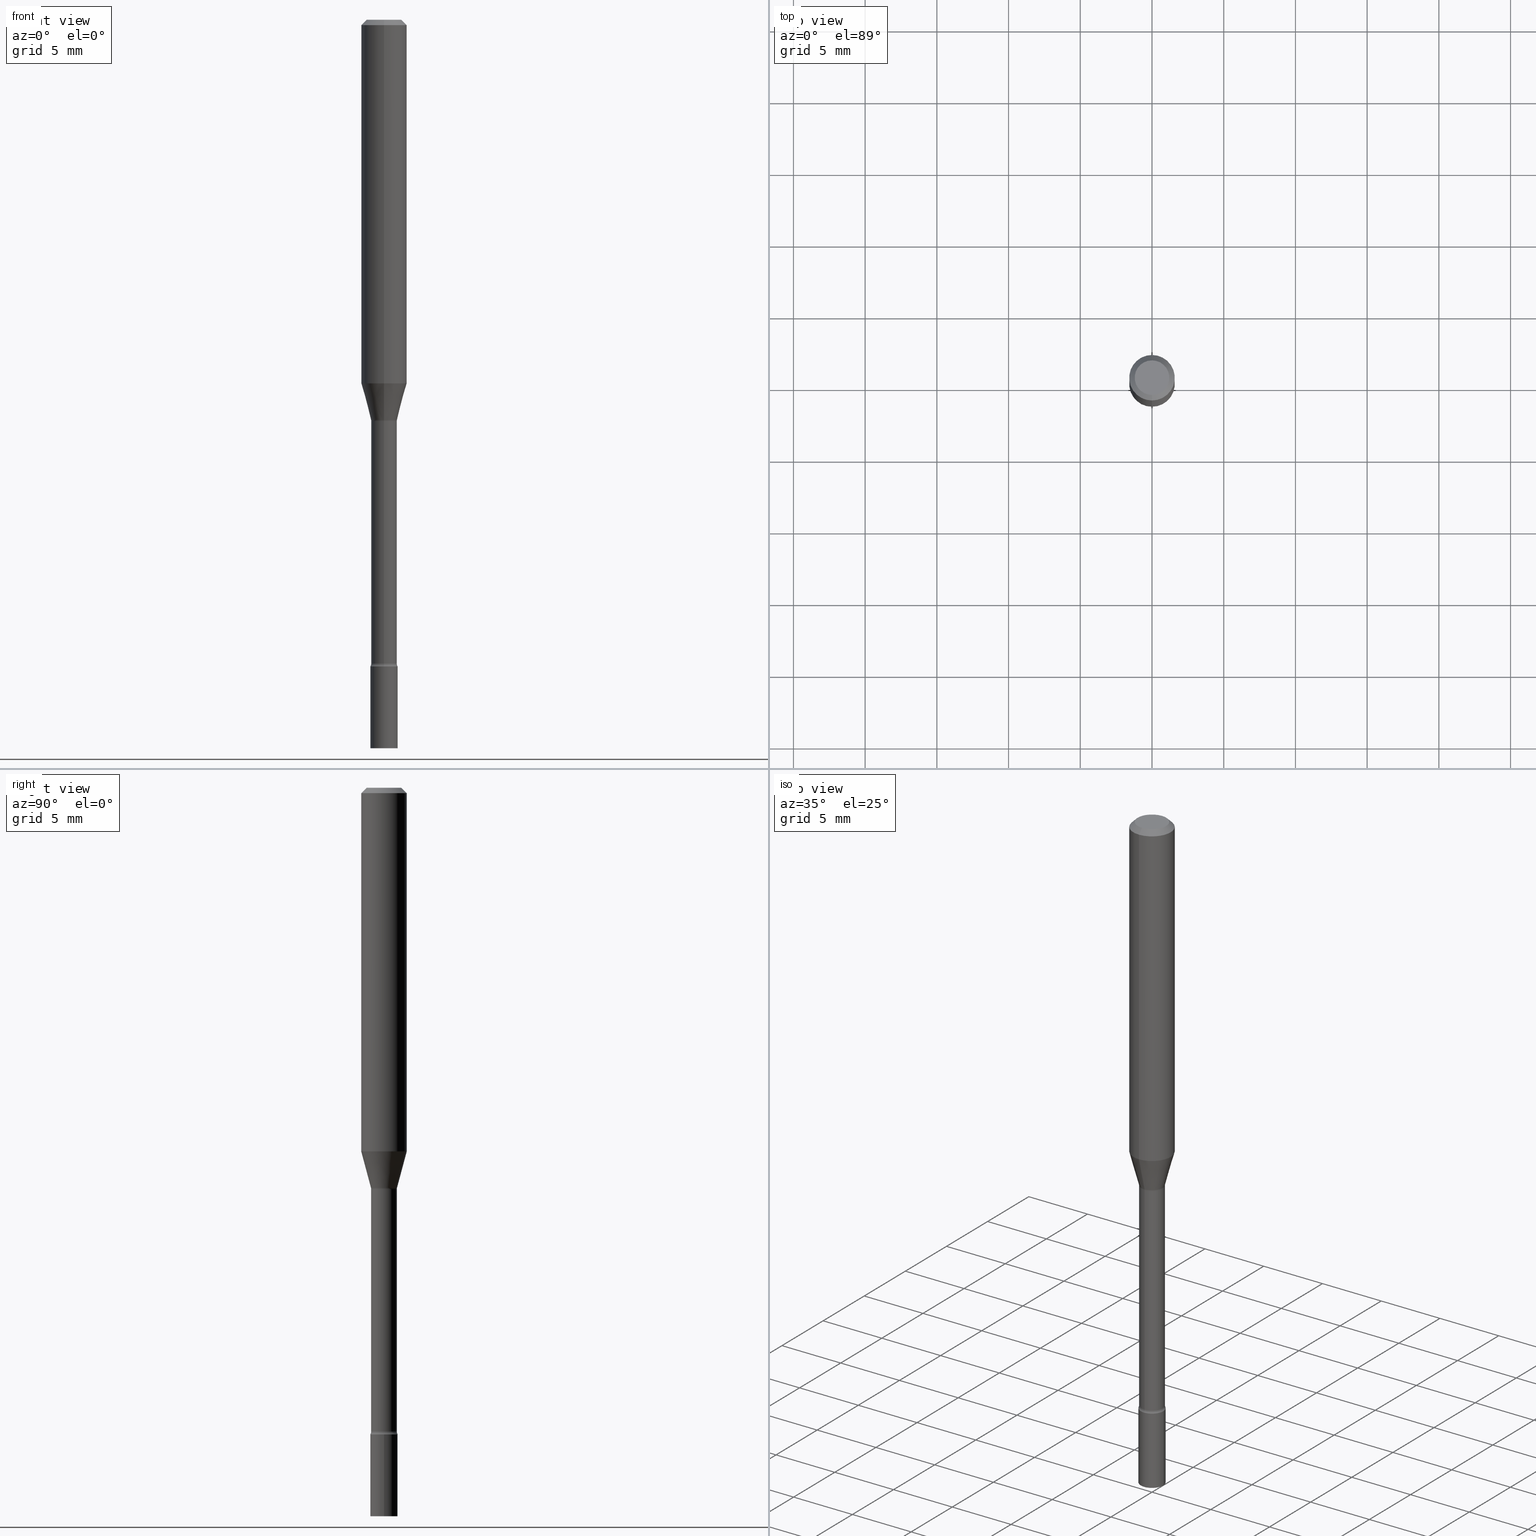
[diagram: canonical four-view strip — front | top / right | iso, engineering-drawing reading convention]
A machine part, canonical four-view strip (front | top / right | iso — engineering-drawing reading convention). The complete STEP part file that produces these views, byte-faithful:
ISO-10303-21;
HEADER;
FILE_DESCRIPTION (( 'STEP AP203' ),
    '1' );
FILE_NAME ('04310.STEP',
    '2024-03-08T23:03:30',
    ( '' ),
    ( '' ),
    'SwSTEP 2.0',
    'SolidWorks 2023',
    '' );
FILE_SCHEMA (( 'CONFIG_CONTROL_DESIGN' ));
ENDSEC;

DATA;
#1 = ORIENTED_EDGE ( 'NONE', *, *, #247, .T. ) ;
#2 = CARTESIAN_POINT ( 'NONE',  ( 3.490935988483243741E-16, 0.03576111260566013778, -1.098092501787273356 ) ) ;
#3 = ORIENTED_EDGE ( 'NONE', *, *, #247, .F. ) ;
#4 = EDGE_CURVE ( 'NONE', #379, #402, #342, .T. ) ;
#5 = AXIS2_PLACEMENT_3D ( 'NONE', #335, #63, #227 ) ;
#6 = VECTOR ( 'NONE', #322, 39.37007874015748143 ) ;
#7 = VERTEX_POINT ( 'NONE', #183 ) ;
#8 = LINE ( 'NONE', #447, #256 ) ;
#9 = PLANE ( 'NONE',  #110 ) ;
#10 = DIRECTION ( 'NONE',  ( 1.000000000000000000, -6.982962677686268288E-15, 0.000000000000000000 ) ) ;
#11 = ORIENTED_EDGE ( 'NONE', *, *, #150, .T. ) ;
#12 = DIRECTION ( 'NONE',  ( 1.000000000000000000, -7.105427357601001070E-15, 4.926314149101816203E-29 ) ) ;
#13 = AXIS2_PLACEMENT_3D ( 'NONE', #434, #151, #442 ) ;
#14 = ORIENTED_EDGE ( 'NONE', *, *, #178, .T. ) ;
#15 = FACE_OUTER_BOUND ( 'NONE', #424, .T. ) ;
#16 = VERTEX_POINT ( 'NONE', #465 ) ;
#17 = APPROVAL_DATE_TIME ( #58, #435 ) ;
#18 = ORIENTED_EDGE ( 'NONE', *, *, #469, .F. ) ;
#19 = MECHANICAL_CONTEXT ( 'NONE', #263, 'mechanical' ) ;
#20 = CLOSED_SHELL ( 'NONE', ( #163, #168, #362, #503 ) ) ;
#21 = DIRECTION ( 'NONE',  ( -2.445546321764708525E-29, 3.491370332121285738E-15, 1.000000000000000000 ) ) ;
#22 = AXIS2_PLACEMENT_3D ( 'NONE', #367, #373, #341 ) ;
#23 = ORIENTED_EDGE ( 'NONE', *, *, #160, .T. ) ;
#24 = DIRECTION ( 'NONE',  ( -2.445546321764708525E-29, 3.491370332121285738E-15, 1.000000000000000000 ) ) ;
#25 = CARTESIAN_POINT ( 'NONE',  ( 4.340844721132357576E-29, -6.197182339515282668E-15, -1.775000000000000133 ) ) ;
#26 =( LENGTH_UNIT ( ) NAMED_UNIT ( * ) SI_UNIT ( $, .METRE. ) );
#27 = DIRECTION ( 'NONE',  ( -6.982962677686265922E-15, -1.000000000000000000, 0.000000000000000000 ) ) ;
#28 = EDGE_CURVE ( 'NONE', #500, #60, #216, .T. ) ;
#29 = COORDINATED_UNIVERSAL_TIME_OFFSET ( 5, 0, .BEHIND. ) ;
#30 = DIRECTION ( 'NONE',  ( -6.982962677686265922E-15, -1.000000000000000000, 3.483106191921935554E-15 ) ) ;
#31 = AXIS2_PLACEMENT_3D ( 'NONE', #53, #171, #366 ) ;
#32 = VERTEX_POINT ( 'NONE', #272 ) ;
#33 = ADVANCED_FACE ( 'NONE', ( #428 ), #102, .T. ) ;
#34 = PLANE ( 'NONE',  #155 ) ;
#35 = ORIENTED_EDGE ( 'NONE', *, *, #234, .F. ) ;
#36 = DIRECTION ( 'NONE',  ( 1.000000000000000000, -6.982962677686265922E-15, 4.876176775795935793E-29 ) ) ;
#37 = SHAPE_DEFINITION_REPRESENTATION ( #371, #450 ) ;
#38 = CARTESIAN_POINT ( 'NONE',  ( -2.618611004131915157E-16, -0.03750000000000618811, -1.775000000000000133 ) ) ;
#39 = DESIGN_CONTEXT ( 'detailed design', #44, 'design' ) ;
#40 = AXIS2_PLACEMENT_3D ( 'NONE', #399, #310, #473 ) ;
#41 = CC_DESIGN_SECURITY_CLASSIFICATION ( #124, ( #443 ) ) ;
#42 = PERSON_AND_ORGANIZATION ( #54, #270 ) ;
#43 = CC_DESIGN_PERSON_AND_ORGANIZATION_ASSIGNMENT ( #42, #427, ( #124 ) ) ;
#44 = APPLICATION_CONTEXT ( 'configuration controlled 3d designs of mechanical parts and assemblies' ) ;
#45 = FACE_OUTER_BOUND ( 'NONE', #233, .T. ) ;
#46 = EDGE_LOOP ( 'NONE', ( #511, #444 ) ) ;
#47 = FACE_OUTER_BOUND ( 'NONE', #459, .T. ) ;
#48 = CARTESIAN_POINT ( 'NONE',  ( -0.03749999999999999861, 2.664535259100375598E-16, -1.844600658845589458E-30 ) ) ;
#49 = CARTESIAN_POINT ( 'NONE',  ( -0.03749999999999999861, -6.323717501156401251E-15, -2.000000000000000000 ) ) ;
#50 = CARTESIAN_POINT ( 'NONE',  ( 2.685436078703272105E-29, -3.833847582664925383E-15, -1.098092501787273134 ) ) ;
#51 = ORIENTED_EDGE ( 'NONE', *, *, #510, .T. ) ;
#52 = ORIENTED_EDGE ( 'NONE', *, *, #234, .T. ) ;
#53 = CARTESIAN_POINT ( 'NONE',  ( 2.618611004132783890E-16, 0.03749999999999380218, -1.775000000000000133 ) ) ;
#54 = PERSON ( 'UNSPECIFIED', 'UNSPECIFIED', 'UNSPECIFIED', ('UNSPECIFIED'), ('UNSPECIFIED'), ('UNSPECIFIED') ) ;
#55 = ORIENTED_EDGE ( 'NONE', *, *, #414, .F. ) ;
#56 = FACE_OUTER_BOUND ( 'NONE', #76, .T. ) ;
#57 = AXIS2_PLACEMENT_3D ( 'NONE', #254, #96, #323 ) ;
#58 = DATE_AND_TIME ( #505, #476 ) ;
#59 = FACE_OUTER_BOUND ( 'NONE', #95, .T. ) ;
#60 = VERTEX_POINT ( 'NONE', #307 ) ;
#61 = DIRECTION ( 'NONE',  ( -6.982962677686265922E-15, -1.000000000000000000, 3.483106191921935554E-15 ) ) ;
#62 = CIRCLE ( 'NONE', #419, 0.03749999999999999861 ) ;
#63 = DIRECTION ( 'NONE',  ( -2.445546321764708525E-29, 3.491370332121285738E-15, 1.000000000000000000 ) ) ;
#64 = TOROIDAL_SURFACE ( 'NONE', #390, 0.05024999999999999606, 0.01499999999999999077 ) ;
#65 = ADVANCED_FACE ( 'NONE', ( #265 ), #356, .T. ) ;
#66 = DIRECTION ( 'NONE',  ( -6.982962677686265922E-15, -1.000000000000000000, 3.491370332121285738E-15 ) ) ;
#67 = ORIENTED_EDGE ( 'NONE', *, *, #510, .F. ) ;
#68 = APPROVAL_STATUS ( 'not_yet_approved' ) ;
#69 = DIRECTION ( 'NONE',  ( -2.445546321764708525E-29, 3.491370332121285738E-15, 1.000000000000000000 ) ) ;
#70 = EDGE_CURVE ( 'NONE', #379, #245, #275, .T. ) ;
#71 = DATE_AND_TIME ( #197, #192 ) ;
#72 = DIRECTION ( 'NONE',  ( 2.445546321764708525E-29, -3.491370332121285738E-15, -1.000000000000000000 ) ) ;
#73 = AXIS2_PLACEMENT_3D ( 'NONE', #25, #137, #27 ) ;
#74 = ORIENTED_EDGE ( 'NONE', *, *, #70, .F. ) ;
#75 = ADVANCED_FACE ( 'NONE', ( #144 ), #99, .T. ) ;
#76 = EDGE_LOOP ( 'NONE', ( #11, #78, #3, #93 ) ) ;
#77 = CARTESIAN_POINT ( 'NONE',  ( 2.694844967945245181E-29, -3.847524406305537036E-15, -1.101974787463810834 ) ) ;
#78 = ORIENTED_EDGE ( 'NONE', *, *, #295, .T. ) ;
#79 = CC_DESIGN_PERSON_AND_ORGANIZATION_ASSIGNMENT ( #182, #339, ( #443 ) ) ;
#80 = CARTESIAN_POINT ( 'NONE',  ( 2.694930388159568916E-29, -3.847402079696808984E-15, -1.101974787463810834 ) ) ;
#81 = AXIS2_PLACEMENT_3D ( 'NONE', #107, #113, #277 ) ;
#82 = DIRECTION ( 'NONE',  ( -2.445546321764708525E-29, 3.491370332121285738E-15, 1.000000000000000000 ) ) ;
#83 = CARTESIAN_POINT ( 'NONE',  ( 0.000000000000000000, 0.000000000000000000, 0.000000000000000000 ) ) ;
#84 = ADVANCED_FACE ( 'NONE', ( #59 ), #34, .F. ) ;
#85 = DIRECTION ( 'NONE',  ( -2.445546321764708525E-29, 3.491370332121285738E-15, 1.000000000000000000 ) ) ;
#86 = ORIENTED_EDGE ( 'NONE', *, *, #319, .F. ) ;
#87 = VECTOR ( 'NONE', #506, 39.37007874015748143 ) ;
#88 = CARTESIAN_POINT ( 'NONE',  ( 0.03749999999999999861, -7.244823778099525378E-15, -2.000000000000000000 ) ) ;
#89 = EDGE_CURVE ( 'NONE', #402, #314, #474, .T. ) ;
#90 = EDGE_CURVE ( 'NONE', #363, #496, #62, .T. ) ;
#91 = DIRECTION ( 'NONE',  ( -2.445546321764708245E-29, 3.491370332121285738E-15, 1.000000000000000000 ) ) ;
#92 = APPROVAL ( #472, 'UNSPECIFIED' ) ;
#93 = ORIENTED_EDGE ( 'NONE', *, *, #121, .F. ) ;
#94 = DIRECTION ( 'NONE',  ( 2.445546321764708525E-29, -3.491370332121285738E-15, -1.000000000000000000 ) ) ;
#95 = EDGE_LOOP ( 'NONE', ( #406, #23 ) ) ;
#96 = DIRECTION ( 'NONE',  ( -2.445546321764708525E-29, 3.491370332121285738E-15, 1.000000000000000000 ) ) ;
#97 = AXIS2_PLACEMENT_3D ( 'NONE', #190, #188, #260 ) ;
#98 = EDGE_CURVE ( 'NONE', #210, #32, #267, .T. ) ;
#99 = CYLINDRICAL_SURFACE ( 'NONE', #311, 0.03525000000000003825 ) ;
#100 = CARTESIAN_POINT ( 'NONE',  ( 4.364351673553919652E-16, 0.06249999999999995143, -0.01500000000000024751 ) ) ;
#101 = SECURITY_CLASSIFICATION_LEVEL ( 'unclassified' ) ;
#102 = CYLINDRICAL_SURFACE ( 'NONE', #179, 0.03525000000000003825 ) ;
#103 = CIRCLE ( 'NONE', #401, 0.03525000000000008682 ) ;
#104 = EDGE_CURVE ( 'NONE', #16, #177, #389, .T. ) ;
#105 = CARTESIAN_POINT ( 'NONE',  ( 2.685436078703272105E-29, -3.833847582664925383E-15, -1.098092501787273134 ) ) ;
#106 = FACE_OUTER_BOUND ( 'NONE', #481, .T. ) ;
#107 = CARTESIAN_POINT ( 'NONE',  ( 4.890937612370273194E-29, -6.982962677686291165E-15, -2.000000000000000000 ) ) ;
#108 = EDGE_CURVE ( 'NONE', #281, #7, #448, .T. ) ;
#109 = AXIS2_PLACEMENT_3D ( 'NONE', #105, #69, #229 ) ;
#110 = AXIS2_PLACEMENT_3D ( 'NONE', #377, #417, #269 ) ;
#111 = ORIENTED_EDGE ( 'NONE', *, *, #262, .T. ) ;
#112 = DIRECTION ( 'NONE',  ( -6.982962677686266711E-15, -1.000000000000000000, 3.491370332121286133E-15 ) ) ;
#113 = DIRECTION ( 'NONE',  ( -2.445468806185136597E-29, 3.491481338843145583E-15, 1.000000000000000000 ) ) ;
#114 = DIRECTION ( 'NONE',  ( -2.445546321764708525E-29, 3.491370332121285738E-15, 1.000000000000000000 ) ) ;
#115 = AXIS2_PLACEMENT_3D ( 'NONE', #273, #418, #186 ) ;
#116 = VECTOR ( 'NONE', #91, 39.37007874015748143 ) ;
#117 = CC_DESIGN_APPROVAL ( #435, ( #457 ) ) ;
#118 = DIRECTION ( 'NONE',  ( -6.982962677686266711E-15, -1.000000000000000000, 0.000000000000000000 ) ) ;
#119 = CARTESIAN_POINT ( 'NONE',  ( 3.840629472727447874E-16, 0.04749999999999999362, -1.947592745229184119E-16 ) ) ;
#120 = LINE ( 'NONE', #169, #206 ) ;
#121 = EDGE_CURVE ( 'NONE', #32, #170, #461, .T. ) ;
#122 = ADVANCED_FACE ( 'NONE', ( #149 ), #358, .F. ) ;
#123 = CIRCLE ( 'NONE', #217, 0.03524999999999999661 ) ;
#124 = SECURITY_CLASSIFICATION ( '', '', #101 ) ;
#125 = CARTESIAN_POINT ( 'NONE',  ( 2.504663143554355873E-16, 0.03525000000000003825, -1.230708042072754750E-16 ) ) ;
#126 = CC_DESIGN_PERSON_AND_ORGANIZATION_ASSIGNMENT ( #139, #464, ( #443 ) ) ;
#127 = ORIENTED_EDGE ( 'NONE', *, *, #410, .T. ) ;
#128 = EDGE_LOOP ( 'NONE', ( #489, #416, #212, #55 ) ) ;
#129 = PLANE ( 'NONE',  #31 ) ;
#130 = ADVANCED_FACE ( 'NONE', ( #106 ), #224, .T. ) ;
#131 = DIRECTION ( 'NONE',  ( -2.445546321764708525E-29, 3.491370332121285738E-15, 1.000000000000000000 ) ) ;
#132 = ORIENTED_EDGE ( 'NONE', *, *, #98, .F. ) ;
#133 = TOROIDAL_SURFACE ( 'NONE', #13, 0.05025000000000007933, 0.01499999999999999077 ) ;
#134 = COORDINATED_UNIVERSAL_TIME_OFFSET ( 5, 0, .BEHIND. ) ;
#135 = ORIENTED_EDGE ( 'NONE', *, *, #519, .T. ) ;
#136 = ORIENTED_EDGE ( 'NONE', *, *, #178, .F. ) ;
#137 = DIRECTION ( 'NONE',  ( -2.445546321764708525E-29, 3.491370332121285738E-15, 1.000000000000000000 ) ) ;
#138 = ORIENTED_EDGE ( 'NONE', *, *, #28, .F. ) ;
#139 = PERSON_AND_ORGANIZATION ( #54, #270 ) ;
#140 = DIRECTION ( 'NONE',  ( -6.982962677686266711E-15, -1.000000000000000000, 3.491370332121286133E-15 ) ) ;
#141 = ORIENTED_EDGE ( 'NONE', *, *, #410, .F. ) ;
#142 = CC_DESIGN_PERSON_AND_ORGANIZATION_ASSIGNMENT ( #264, #143, ( #298 ) ) ;
#143 = PERSON_AND_ORGANIZATION_ROLE ( 'design_owner' ) ;
#144 = FACE_OUTER_BOUND ( 'NONE', #385, .T. ) ;
#145 = CIRCLE ( 'NONE', #40, 0.06250000000000000000 ) ;
#146 = AXIS2_PLACEMENT_3D ( 'NONE', #446, #85, #249 ) ;
#147 = VERTEX_POINT ( 'NONE', #468 ) ;
#148 = DATE_TIME_ROLE ( 'creation_date' ) ;
#149 = FACE_OUTER_BOUND ( 'NONE', #368, .T. ) ;
#150 = EDGE_CURVE ( 'NONE', #32, #210, #327, .T. ) ;
#151 = DIRECTION ( 'NONE',  ( -2.445546321764708525E-29, 3.491370332121285738E-15, 1.000000000000000000 ) ) ;
#152 = ORIENTED_EDGE ( 'NONE', *, *, #319, .T. ) ;
#153 = COORDINATED_UNIVERSAL_TIME_OFFSET ( 5, 0, .BEHIND. ) ;
#154 = LINE ( 'NONE', #318, #349 ) ;
#155 = AXIS2_PLACEMENT_3D ( 'NONE', #225, #384, #504 ) ;
#156 = AXIS2_PLACEMENT_3D ( 'NONE', #292, #495, #287 ) ;
#157 = LOCAL_TIME ( 18, 3, 30.00000000000000000, #243 ) ;
#158 = DATE_AND_TIME ( #387, #157 ) ;
#159 = DIRECTION ( 'NONE',  ( 7.105427357600997914E-15, 1.000000000000000000, 0.000000000000000000 ) ) ;
#160 = EDGE_CURVE ( 'NONE', #245, #379, #411, .T. ) ;
#161 = CARTESIAN_POINT ( 'NONE',  ( 7.072320344129838963E-46, -1.009675801639892635E-31, -2.891918374715734821E-17 ) ) ;
#162 = ORIENTED_EDGE ( 'NONE', *, *, #316, .F. ) ;
#163 = ADVANCED_FACE ( 'NONE', ( #279 ), #436, .T. ) ;
#164 = FACE_OUTER_BOUND ( 'NONE', #46, .T. ) ;
#165 = AXIS2_PLACEMENT_3D ( 'NONE', #331, #131, #453 ) ;
#166 = CIRCLE ( 'NONE', #475, 0.01499999999999999424 ) ;
#167 = DIRECTION ( 'NONE',  ( 1.000000000000000000, -6.982962677686266711E-15, 4.876176775795935793E-29 ) ) ;
#168 = ADVANCED_FACE ( 'NONE', ( #164 ), #395, .T. ) ;
#169 = CARTESIAN_POINT ( 'NONE',  ( -2.461494343884411737E-16, -0.03525000000000003825, 1.230708042072754750E-16 ) ) ;
#170 = VERTEX_POINT ( 'NONE', #479 ) ;
#171 = DIRECTION ( 'NONE',  ( -2.445546321764708245E-29, 3.491370332121285738E-15, 1.000000000000000000 ) ) ;
#172 = AXIS2_PLACEMENT_3D ( 'NONE', #246, #237, #36 ) ;
#173 = ORIENTED_EDGE ( 'NONE', *, *, #429, .T. ) ;
#174 = DIRECTION ( 'NONE',  ( 7.105427357600997914E-15, 1.000000000000000000, 0.000000000000000000 ) ) ;
#175 = ADVANCED_FACE ( 'NONE', ( #47 ), #133, .F. ) ;
#176 = CYLINDRICAL_SURFACE ( 'NONE', #165, 0.06250000000000000000 ) ;
#177 = VERTEX_POINT ( 'NONE', #320 ) ;
#178 = EDGE_CURVE ( 'NONE', #177, #16, #103, .T. ) ;
#179 = AXIS2_PLACEMENT_3D ( 'NONE', #340, #415, #140 ) ;
#180 = EDGE_LOOP ( 'NONE', ( #18, #376, #111, #236 ) ) ;
#181 = VECTOR ( 'NONE', #286, 39.37007874015748143 ) ;
#182 = PERSON_AND_ORGANIZATION ( #54, #270 ) ;
#183 = CARTESIAN_POINT ( 'NONE',  ( 2.664535259100808486E-16, 0.03749999999999379524, -1.775000000000000133 ) ) ;
#184 = ORIENTED_EDGE ( 'NONE', *, *, #202, .F. ) ;
#185 = CARTESIAN_POINT ( 'NONE',  ( 3.668319482647070110E-31, -5.237055498181939355E-17, -0.01500000000000003067 ) ) ;
#186 = DIRECTION ( 'NONE',  ( 1.000000000000000000, -6.982962677686268288E-15, 0.000000000000000000 ) ) ;
#187 = CC_DESIGN_DATE_AND_TIME_ASSIGNMENT ( #158, #354, ( #124 ) ) ;
#188 = DIRECTION ( 'NONE',  ( -2.445546321764708525E-29, 3.491370332121285738E-15, 1.000000000000000000 ) ) ;
#189 = COORDINATED_UNIVERSAL_TIME_OFFSET ( 5, 0, .BEHIND. ) ;
#190 = CARTESIAN_POINT ( 'NONE',  ( 4.321520649170351713E-29, -6.169594437808623412E-15, -1.767098259685360606 ) ) ;
#191 = AXIS2_PLACEMENT_3D ( 'NONE', #83, #244, #285 ) ;
#192 = LOCAL_TIME ( 18, 3, 30.00000000000000000, #153 ) ;
#193 = ORIENTED_EDGE ( 'NONE', *, *, #98, .T. ) ;
#194 = DIRECTION ( 'NONE',  ( -6.982962677686265922E-15, -1.000000000000000000, 3.491370332121285738E-15 ) ) ;
#195 = DIMENSIONAL_EXPONENTS ( 1.000000000000000000, 0.000000000000000000, 0.000000000000000000, 0.000000000000000000, 0.000000000000000000, 0.000000000000000000, 0.000000000000000000 ) ;
#196 = ORIENTED_EDGE ( 'NONE', *, *, #332, .T. ) ;
#197 = CALENDAR_DATE ( 2024, 8, 3 ) ;
#198 = DIRECTION ( 'NONE',  ( 1.000000000000000000, -7.105427357601001070E-15, 4.926314149101816203E-29 ) ) ;
#199 = DIRECTION ( 'NONE',  ( -6.982962677686265922E-15, -1.000000000000000000, 3.491370332121285738E-15 ) ) ;
#200 = AXIS2_PLACEMENT_3D ( 'NONE', #493, #449, #218 ) ;
#201 = CARTESIAN_POINT ( 'NONE',  ( -2.461494343884138594E-16, -0.03525000000000384076, -1.101974787463810834 ) ) ;
#202 = EDGE_CURVE ( 'NONE', #210, #147, #283, .T. ) ;
#203 = CARTESIAN_POINT ( 'NONE',  ( 3.570477247194771860E-16, 0.05024999999999614497, -1.101974787463811056 ) ) ;
#204 = CARTESIAN_POINT ( 'NONE',  ( 3.570477247194940479E-16, 0.05024999999999391065, -1.767098259685361050 ) ) ;
#205 = VECTOR ( 'NONE', #296, 39.37007874015748143 ) ;
#206 = VECTOR ( 'NONE', #487, 39.37007874015748143 ) ;
#207 = LOCAL_TIME ( 18, 3, 30.00000000000000000, #134 ) ;
#208 = ADVANCED_FACE ( 'NONE', ( #520 ), #347, .T. ) ;
#209 = CARTESIAN_POINT ( 'NONE',  ( 0.03749999999999999861, -6.459240476859818795E-15, -1.775000000000000133 ) ) ;
#210 = VERTEX_POINT ( 'NONE', #2 ) ;
#211 = DIRECTION ( 'NONE',  ( -2.445546321764708525E-29, 3.491370332121285738E-15, 1.000000000000000000 ) ) ;
#212 = ORIENTED_EDGE ( 'NONE', *, *, #344, .T. ) ;
#213 = ORIENTED_EDGE ( 'NONE', *, *, #108, .T. ) ;
#214 = LINE ( 'NONE', #48, #6 ) ;
#215 = ADVANCED_FACE ( 'NONE', ( #45 ), #64, .F. ) ;
#216 = CIRCLE ( 'NONE', #115, 0.03749999999999999861 ) ;
#217 = AXIS2_PLACEMENT_3D ( 'NONE', #80, #114, #282 ) ;
#218 = DIRECTION ( 'NONE',  ( -6.982962677686265133E-15, -1.000000000000000000, 3.874961693140799059E-15 ) ) ;
#219 = ORIENTED_EDGE ( 'NONE', *, *, #160, .F. ) ;
#220 = LENGTH_MEASURE_WITH_UNIT ( LENGTH_MEASURE( 0.02539999999999999897 ), #26 );
#221 = DATE_AND_TIME ( #512, #420 ) ;
#222 = DIRECTION ( 'NONE',  ( 1.000000000000000000, -6.982962677686268288E-15, 0.000000000000000000 ) ) ;
#223 = ORIENTED_EDGE ( 'NONE', *, *, #438, .F. ) ;
#224 = CONICAL_SURFACE ( 'NONE', #517, 0.03576111260566397498, 0.2617993877991499629 ) ;
#225 = CARTESIAN_POINT ( 'NONE',  ( 3.316907271900976096E-16, 0.04749999999999999362, -1.802996826493397501E-16 ) ) ;
#226 = CARTESIAN_POINT ( 'NONE',  ( -4.287811248607203282E-16, -0.06250000000000005551, -0.01499999999999981209 ) ) ;
#227 = DIRECTION ( 'NONE',  ( -6.982962677686266711E-15, -1.000000000000000000, 3.491370332121286133E-15 ) ) ;
#228 = PERSON_AND_ORGANIZATION ( #54, #270 ) ;
#229 = DIRECTION ( 'NONE',  ( -6.982962677686265133E-15, -1.000000000000000000, 3.819579138641765120E-15 ) ) ;
#230 = CONICAL_SURFACE ( 'NONE', #268, 0.03576111260566397498, 0.2617993877991499629 ) ;
#231 = CARTESIAN_POINT ( 'NONE',  ( 4.321383671524591751E-29, -6.169790597593636121E-15, -1.767098259685360606 ) ) ;
#232 = ORIENTED_EDGE ( 'NONE', *, *, #104, .T. ) ;
#233 = EDGE_LOOP ( 'NONE', ( #184, #274, #52, #127 ) ) ;
#234 = EDGE_CURVE ( 'NONE', #32, #257, #372, .T. ) ;
#235 = LINE ( 'NONE', #386, #313 ) ;
#236 = ORIENTED_EDGE ( 'NONE', *, *, #89, .F. ) ;
#237 = DIRECTION ( 'NONE',  ( -2.438088387897960049E-29, 3.491481338843145188E-15, 1.000000000000000000 ) ) ;
#238 = UNCERTAINTY_MEASURE_WITH_UNIT (LENGTH_MEASURE( 1.000000000000000082E-05 ), #497, 'distance_accuracy_value', 'NONE');
#239 = DIRECTION ( 'NONE',  ( -2.445546321764708525E-29, 3.491370332121285738E-15, 1.000000000000000000 ) ) ;
#240 = ADVANCED_FACE ( 'NONE', ( #478 ), #304, .F. ) ;
#241 = AXIS2_PLACEMENT_3D ( 'NONE', #445, #317, #355 ) ;
#242 = EDGE_LOOP ( 'NONE', ( #397, #423 ) ) ;
#243 = COORDINATED_UNIVERSAL_TIME_OFFSET ( 5, 0, .BEHIND. ) ;
#244 = DIRECTION ( 'NONE',  ( -2.445468806185136597E-29, 3.491481338843145583E-15, 1.000000000000000000 ) ) ;
#245 = VERTEX_POINT ( 'NONE', #353 ) ;
#246 = CARTESIAN_POINT ( 'NONE',  ( 4.340707130978617347E-29, -6.197379376446583794E-15, -1.775000000000000133 ) ) ;
#247 = EDGE_CURVE ( 'NONE', #170, #333, #145, .T. ) ;
#248 = ORIENTED_EDGE ( 'NONE', *, *, #295, .F. ) ;
#249 = DIRECTION ( 'NONE',  ( -6.982962677686265922E-15, -1.000000000000000000, 4.370956789862821150E-15 ) ) ;
#250 = CC_DESIGN_DATE_AND_TIME_ASSIGNMENT ( #221, #148, ( #457 ) ) ;
#251 = AXIS2_PLACEMENT_3D ( 'NONE', #293, #94, #409 ) ;
#252 = DIRECTION ( 'NONE',  ( -6.982962677686265133E-15, -1.000000000000000000, 3.819579138641765120E-15 ) ) ;
#253 = EDGE_CURVE ( 'NONE', #496, #363, #454, .T. ) ;
#254 = CARTESIAN_POINT ( 'NONE',  ( 4.340844721132357576E-29, -6.197182339515282668E-15, -1.775000000000000133 ) ) ;
#255 = CARTESIAN_POINT ( 'NONE',  ( 0.000000000000000000, 0.000000000000000000, 0.000000000000000000 ) ) ;
#256 = VECTOR ( 'NONE', #290, 39.37007874015748143 ) ;
#257 = VERTEX_POINT ( 'NONE', #201 ) ;
#258 = DIRECTION ( 'NONE',  ( -2.445468806185136597E-29, 3.491481338843145583E-15, 1.000000000000000000 ) ) ;
#259 = LINE ( 'NONE', #226, #412 ) ;
#260 = DIRECTION ( 'NONE',  ( -6.982962677686266711E-15, -1.000000000000000000, 0.000000000000000000 ) ) ;
#261 = ORIENTED_EDGE ( 'NONE', *, *, #108, .F. ) ;
#262 = EDGE_CURVE ( 'NONE', #170, #314, #235, .T. ) ;
#263 = APPLICATION_CONTEXT ( 'configuration controlled 3d designs of mechanical parts and assemblies' ) ;
#264 = PERSON_AND_ORGANIZATION ( #54, #270 ) ;
#265 = FACE_OUTER_BOUND ( 'NONE', #291, .T. ) ;
#266 = APPROVAL ( #308, 'UNSPECIFIED' ) ;
#267 = CIRCLE ( 'NONE', #326, 0.03576111260566397498 ) ;
#268 = AXIS2_PLACEMENT_3D ( 'NONE', #50, #211, #252 ) ;
#269 = DIRECTION ( 'NONE',  ( -1.000000000000000000, 6.982962677686265922E-15, -4.876176775795935793E-29 ) ) ;
#270 = ORGANIZATION ( 'UNSPECIFIED', 'UNSPECIFIED', '' ) ;
#271 = PERSON_AND_ORGANIZATION ( #54, #270 ) ;
#272 = CARTESIAN_POINT ( 'NONE',  ( -2.497185146378605472E-16, -0.03576111260566780525, -1.098092501787272912 ) ) ;
#273 = CARTESIAN_POINT ( 'NONE',  ( 4.340707130978617347E-29, -6.197379376446583794E-15, -1.775000000000000133 ) ) ;
#274 = ORIENTED_EDGE ( 'NONE', *, *, #150, .F. ) ;
#275 = CIRCLE ( 'NONE', #5, 0.04749999999999999362 ) ;
#276 = CONICAL_SURFACE ( 'NONE', #251, 0.06250000000000000000, 0.7853981633974483900 ) ;
#277 = DIRECTION ( 'NONE',  ( 1.000000000000000000, -6.982962677686268288E-15, 0.000000000000000000 ) ) ;
#278 = CC_DESIGN_APPROVAL ( #92, ( #124 ) ) ;
#279 = FACE_OUTER_BOUND ( 'NONE', #324, .T. ) ;
#280 = ORIENTED_EDGE ( 'NONE', *, *, #316, .T. ) ;
#281 = VERTEX_POINT ( 'NONE', #38 ) ;
#282 = DIRECTION ( 'NONE',  ( -6.982962677686265133E-15, -1.000000000000000000, 3.874961693140799059E-15 ) ) ;
#283 = CIRCLE ( 'NONE', #466, 0.01499999999999999424 ) ;
#284 = EDGE_LOOP ( 'NONE', ( #328, #232, #152, #162 ) ) ;
#285 = DIRECTION ( 'NONE',  ( 1.000000000000000000, -6.982962677686266711E-15, 4.876176775795935793E-29 ) ) ;
#286 = DIRECTION ( 'NONE',  ( -2.445546321764708245E-29, 3.491370332121285738E-15, 1.000000000000000000 ) ) ;
#287 = DIRECTION ( 'NONE',  ( -6.982962677686262766E-15, -1.000000000000000000, 0.000000000000000000 ) ) ;
#288 = AXIS2_PLACEMENT_3D ( 'NONE', #161, #239, #112 ) ;
#289 = CIRCLE ( 'NONE', #146, 0.06250000000000000000 ) ;
#290 = DIRECTION ( 'NONE',  ( -2.445468806185136877E-29, 3.491481338843145188E-15, 1.000000000000000000 ) ) ;
#291 = EDGE_LOOP ( 'NONE', ( #67, #74, #365, #430 ) ) ;
#292 = CARTESIAN_POINT ( 'NONE',  ( -3.508938745536922406E-16, -0.05025000000000625494, -1.767098259685360384 ) ) ;
#293 = CARTESIAN_POINT ( 'NONE',  ( 3.668319482647070110E-31, -5.237055498181939355E-17, -0.01500000000000003067 ) ) ;
#294 = CALENDAR_DATE ( 2024, 8, 3 ) ;
#295 = EDGE_CURVE ( 'NONE', #210, #333, #154, .T. ) ;
#296 = DIRECTION ( 'NONE',  ( 4.937700262164548042E-15, 0.7071067811865451302, -0.7071067811865499042 ) ) ;
#297 = EDGE_LOOP ( 'NONE', ( #261, #477 ) ) ;
#298 = PRODUCT ( '04310', '04310', '', ( #19 ) ) ;
#299 = APPROVAL_ROLE ( '' ) ;
#300 = CARTESIAN_POINT ( 'NONE',  ( 3.668319482647070110E-31, -5.237055498181939355E-17, -0.01500000000000003067 ) ) ;
#301 = PERSON_AND_ORGANIZATION ( #54, #270 ) ;
#302 = CARTESIAN_POINT ( 'NONE',  ( 2.685436078703272105E-29, -3.833847582664925383E-15, -1.098092501787273134 ) ) ;
#303 = ORIENTED_EDGE ( 'NONE', *, *, #121, .T. ) ;
#304 = TOROIDAL_SURFACE ( 'NONE', #336, 0.05024999999999999606, 0.01499999999999999077 ) ;
#305 = APPLICATION_PROTOCOL_DEFINITION ( 'international standard', 'config_control_design', 1994, #44 ) ;
#306 = AXIS2_PLACEMENT_3D ( 'NONE', #185, #24, #61 ) ;
#307 = CARTESIAN_POINT ( 'NONE',  ( -0.03749999999999999861, -6.323717501156401251E-15, -1.775000000000000133 ) ) ;
#308 = APPROVAL_STATUS ( 'not_yet_approved' ) ;
#309 = DIRECTION ( 'NONE',  ( -6.982962677686265133E-15, -1.000000000000000000, 3.819579138641765120E-15 ) ) ;
#310 = DIRECTION ( 'NONE',  ( -2.445546321764708525E-29, 3.491370332121285738E-15, 1.000000000000000000 ) ) ;
#311 = AXIS2_PLACEMENT_3D ( 'NONE', #370, #346, #378 ) ;
#312 = PERSON_AND_ORGANIZATION ( #54, #270 ) ;
#313 = VECTOR ( 'NONE', #348, 39.37007874015748143 ) ;
#314 = VERTEX_POINT ( 'NONE', #480 ) ;
#315 = DIRECTION ( 'NONE',  ( -6.982962677686262766E-15, -1.000000000000000000, 0.000000000000000000 ) ) ;
#316 = EDGE_CURVE ( 'NONE', #147, #257, #123, .T. ) ;
#317 = DIRECTION ( 'NONE',  ( -2.445546321764708525E-29, 3.491370332121285738E-15, 1.000000000000000000 ) ) ;
#318 = CARTESIAN_POINT ( 'NONE',  ( 2.540979878465616281E-16, 0.03576111260566013778, -1.098092501787273356 ) ) ;
#319 = EDGE_CURVE ( 'NONE', #177, #257, #120, .T. ) ;
#320 = CARTESIAN_POINT ( 'NONE',  ( -2.461494343883982794E-16, -0.03525000000000625550, -1.767098259685360606 ) ) ;
#321 = AXIS2_PLACEMENT_3D ( 'NONE', #405, #258, #10 ) ;
#322 = DIRECTION ( 'NONE',  ( -2.445468806185136877E-29, 3.491481338843145188E-15, 1.000000000000000000 ) ) ;
#323 = DIRECTION ( 'NONE',  ( -6.982962677686265922E-15, -1.000000000000000000, 0.000000000000000000 ) ) ;
#324 = EDGE_LOOP ( 'NONE', ( #455, #173, #138, #437 ) ) ;
#325 = FACE_OUTER_BOUND ( 'NONE', #128, .T. ) ;
#326 = AXIS2_PLACEMENT_3D ( 'NONE', #302, #21, #309 ) ;
#327 = CIRCLE ( 'NONE', #109, 0.03576111260566397498 ) ;
#328 = ORIENTED_EDGE ( 'NONE', *, *, #421, .F. ) ;
#329 = CARTESIAN_POINT ( 'NONE',  ( 4.440892098500871695E-16, 0.06249999999999995837, -0.01500000000000024751 ) ) ;
#330 = ORIENTED_EDGE ( 'NONE', *, *, #202, .T. ) ;
#331 = CARTESIAN_POINT ( 'NONE',  ( 0.000000000000000000, 0.000000000000000000, 0.000000000000000000 ) ) ;
#332 = EDGE_CURVE ( 'NONE', #177, #281, #482, .T. ) ;
#333 = VERTEX_POINT ( 'NONE', #364 ) ;
#334 = APPROVAL_ROLE ( '' ) ;
#335 = CARTESIAN_POINT ( 'NONE',  ( 7.072320344129838963E-46, -1.009675801639892635E-31, -2.891918374715734821E-17 ) ) ;
#336 = AXIS2_PLACEMENT_3D ( 'NONE', #388, #439, #194 ) ;
#337 = ORIENTED_EDGE ( 'NONE', *, *, #104, .F. ) ;
#338 = CC_DESIGN_PERSON_AND_ORGANIZATION_ASSIGNMENT ( #228, #380, ( #457 ) ) ;
#339 = PERSON_AND_ORGANIZATION_ROLE ( 'creator' ) ;
#340 = CARTESIAN_POINT ( 'NONE',  ( 0.000000000000000000, 0.000000000000000000, 0.000000000000000000 ) ) ;
#341 = DIRECTION ( 'NONE',  ( 1.000000000000000000, 0.000000000000000000, 0.000000000000000000 ) ) ;
#342 = LINE ( 'NONE', #100, #205 ) ;
#343 = CARTESIAN_POINT ( 'NONE',  ( 2.685436078703272105E-29, -3.833847582664925383E-15, -1.098092501787273134 ) ) ;
#344 = EDGE_CURVE ( 'NONE', #363, #500, #8, .T. ) ;
#345 = CIRCLE ( 'NONE', #200, 0.03524999999999999661 ) ;
#346 = DIRECTION ( 'NONE',  ( -2.445546321764708525E-29, 3.491370332121285738E-15, 1.000000000000000000 ) ) ;
#347 = CYLINDRICAL_SURFACE ( 'NONE', #241, 0.06250000000000000000 ) ;
#348 = DIRECTION ( 'NONE',  ( -2.445546321764708245E-29, 3.491370332121285738E-15, 1.000000000000000000 ) ) ;
#349 = VECTOR ( 'NONE', #518, 39.37007874015748854 ) ;
#350 = DIRECTION ( 'NONE',  ( -1.000000000000000000, 6.982962677686265922E-15, -4.883557194083112340E-29 ) ) ;
#351 = APPROVAL_PERSON_ORGANIZATION ( #301, #266, #334 ) ;
#352 = APPROVAL_DATE_TIME ( #71, #92 ) ;
#353 = CARTESIAN_POINT ( 'NONE',  ( -3.773273898774340269E-16, -0.04749999999999999362, 1.369209070286037155E-16 ) ) ;
#354 = DATE_TIME_ROLE ( 'classification_date' ) ;
#355 = DIRECTION ( 'NONE',  ( -6.982962677686265922E-15, -1.000000000000000000, 3.491370332121285738E-15 ) ) ;
#356 = CONICAL_SURFACE ( 'NONE', #431, 0.06250000000000000000, 0.7853981633974483900 ) ;
#357 = LINE ( 'NONE', #485, #181 ) ;
#358 = TOROIDAL_SURFACE ( 'NONE', #441, 0.05025000000000007933, 0.01499999999999999077 ) ;
#359 = FACE_OUTER_BOUND ( 'NONE', #242, .T. ) ;
#360 = ORIENTED_EDGE ( 'NONE', *, *, #519, .F. ) ;
#361 = FACE_OUTER_BOUND ( 'NONE', #297, .T. ) ;
#362 = ADVANCED_FACE ( 'NONE', ( #325 ), #452, .T. ) ;
#363 = VERTEX_POINT ( 'NONE', #88 ) ;
#364 = CARTESIAN_POINT ( 'NONE',  ( 4.440892098500869722E-16, 0.06249999999999652361, -0.9983016154937485176 ) ) ;
#365 = ORIENTED_EDGE ( 'NONE', *, *, #4, .T. ) ;
#366 = DIRECTION ( 'NONE',  ( -6.982962677686265922E-15, -1.000000000000000000, 3.491370332121285738E-15 ) ) ;
#367 = CARTESIAN_POINT ( 'NONE',  ( 0.000000000000000000, 0.000000000000000000, 0.000000000000000000 ) ) ;
#368 = EDGE_LOOP ( 'NONE', ( #337, #492, #426, #408 ) ) ;
#369 = DATE_AND_TIME ( #294, #207 ) ;
#370 = CARTESIAN_POINT ( 'NONE',  ( 0.000000000000000000, 0.000000000000000000, 0.000000000000000000 ) ) ;
#371 = PRODUCT_DEFINITION_SHAPE ( 'NONE', 'NONE',  #457 ) ;
#372 = CIRCLE ( 'NONE', #432, 0.01499999999999999424 ) ;
#373 = DIRECTION ( 'NONE',  ( 0.000000000000000000, 0.000000000000000000, 1.000000000000000000 ) ) ;
#374 = DIRECTION ( 'NONE',  ( -2.445468806185136597E-29, 3.491481338843145583E-15, 1.000000000000000000 ) ) ;
#375 = ORIENTED_EDGE ( 'NONE', *, *, #421, .T. ) ;
#376 = ORIENTED_EDGE ( 'NONE', *, *, #484, .T. ) ;
#377 = CARTESIAN_POINT ( 'NONE',  ( 2.618611004132838617E-16, 0.03749999999999301115, -2.000000000000000000 ) ) ;
#378 = DIRECTION ( 'NONE',  ( -6.982962677686266711E-15, -1.000000000000000000, 3.491370332121286133E-15 ) ) ;
#379 = VERTEX_POINT ( 'NONE', #119 ) ;
#380 = PERSON_AND_ORGANIZATION_ROLE ( 'creator' ) ;
#381 = CARTESIAN_POINT ( 'NONE',  ( 3.668319482647070110E-31, -5.237055498181939355E-17, -0.01500000000000003067 ) ) ;
#382 = AXIS2_PLACEMENT_3D ( 'NONE', #255, #407, #167 ) ;
#383 =( GEOMETRIC_REPRESENTATION_CONTEXT ( 3 ) GLOBAL_UNCERTAINTY_ASSIGNED_CONTEXT ( ( #238 ) ) GLOBAL_UNIT_ASSIGNED_CONTEXT ( ( #497, #470, #507 ) ) REPRESENTATION_CONTEXT ( 'NONE', 'WORKASPACE' ) );
#384 = DIRECTION ( 'NONE',  ( 2.445546321764708245E-29, -3.491370332121285738E-15, -1.000000000000000000 ) ) ;
#385 = EDGE_LOOP ( 'NONE', ( #14, #375, #141, #86 ) ) ;
#386 = CARTESIAN_POINT ( 'NONE',  ( -4.364351673553916201E-16, -0.06250000000000000000, 2.182106457575803586E-16 ) ) ;
#387 = CALENDAR_DATE ( 2024, 8, 3 ) ;
#388 = CARTESIAN_POINT ( 'NONE',  ( 2.694844967945245181E-29, -3.847524406305537036E-15, -1.101974787463810834 ) ) ;
#389 = CIRCLE ( 'NONE', #97, 0.03525000000000008682 ) ;
#390 = AXIS2_PLACEMENT_3D ( 'NONE', #77, #514, #199 ) ;
#391 = EDGE_CURVE ( 'NONE', #7, #281, #509, .T. ) ;
#392 = CARTESIAN_POINT ( 'NONE',  ( 4.321520649170351713E-29, -6.169594437808623412E-15, -1.767098259685360606 ) ) ;
#393 = APPROVAL_ROLE ( '' ) ;
#394 = EDGE_LOOP ( 'NONE', ( #219, #51, #135, #398 ) ) ;
#395 = PLANE ( 'NONE',  #172 ) ;
#396 = ADVANCED_FACE ( 'NONE', ( #56 ), #230, .T. ) ;
#397 = ORIENTED_EDGE ( 'NONE', *, *, #90, .F. ) ;
#398 = ORIENTED_EDGE ( 'NONE', *, *, #4, .F. ) ;
#399 = CARTESIAN_POINT ( 'NONE',  ( 2.441392843782502609E-29, -3.485440642843624235E-15, -0.9983016154937482955 ) ) ;
#400 = FACE_OUTER_BOUND ( 'NONE', #394, .T. ) ;
#401 = AXIS2_PLACEMENT_3D ( 'NONE', #392, #82, #118 ) ;
#402 = VERTEX_POINT ( 'NONE', #329 ) ;
#403 = CIRCLE ( 'NONE', #306, 0.06250000000000000000 ) ;
#404 = PRODUCT_RELATED_PRODUCT_CATEGORY ( 'detail', '', ( #298 ) ) ;
#405 = CARTESIAN_POINT ( 'NONE',  ( 4.340707130978617347E-29, -6.197379376446583794E-15, -1.775000000000000133 ) ) ;
#406 = ORIENTED_EDGE ( 'NONE', *, *, #70, .T. ) ;
#407 = DIRECTION ( 'NONE',  ( -2.445468806185136597E-29, 3.491481338843145583E-15, 1.000000000000000000 ) ) ;
#408 = ORIENTED_EDGE ( 'NONE', *, *, #332, .F. ) ;
#409 = DIRECTION ( 'NONE',  ( 6.982962677686265922E-15, 1.000000000000000000, -3.483106191921935554E-15 ) ) ;
#410 = EDGE_CURVE ( 'NONE', #257, #147, #345, .T. ) ;
#411 = CIRCLE ( 'NONE', #288, 0.04749999999999999362 ) ;
#412 = VECTOR ( 'NONE', #456, 39.37007874015748143 ) ;
#413 = ADVANCED_FACE ( 'NONE', ( #361 ), #129, .F. ) ;
#414 = EDGE_CURVE ( 'NONE', #60, #500, #491, .T. ) ;
#415 = DIRECTION ( 'NONE',  ( -2.445546321764708525E-29, 3.491370332121285738E-15, 1.000000000000000000 ) ) ;
#416 = ORIENTED_EDGE ( 'NONE', *, *, #253, .T. ) ;
#417 = DIRECTION ( 'NONE',  ( 2.438088387897960049E-29, -3.491481338843145188E-15, -1.000000000000000000 ) ) ;
#418 = DIRECTION ( 'NONE',  ( -2.445468806185136597E-29, 3.491481338843145583E-15, 1.000000000000000000 ) ) ;
#419 = AXIS2_PLACEMENT_3D ( 'NONE', #513, #374, #222 ) ;
#420 = LOCAL_TIME ( 18, 3, 30.00000000000000000, #189 ) ;
#421 = EDGE_CURVE ( 'NONE', #16, #147, #490, .T. ) ;
#422 = DIRECTION ( 'NONE',  ( -2.445546321764708525E-29, 3.491370332121285738E-15, 1.000000000000000000 ) ) ;
#423 = ORIENTED_EDGE ( 'NONE', *, *, #253, .F. ) ;
#424 = EDGE_LOOP ( 'NONE', ( #1, #451, #360, #467 ) ) ;
#425 = CARTESIAN_POINT ( 'NONE',  ( -2.497185146378605472E-16, -0.03576111260566780525, -1.098092501787272912 ) ) ;
#426 = ORIENTED_EDGE ( 'NONE', *, *, #391, .T. ) ;
#427 = PERSON_AND_ORGANIZATION_ROLE ( 'classification_officer' ) ;
#428 = FACE_OUTER_BOUND ( 'NONE', #284, .T. ) ;
#429 = EDGE_CURVE ( 'NONE', #496, #60, #214, .T. ) ;
#430 = ORIENTED_EDGE ( 'NONE', *, *, #89, .T. ) ;
#431 = AXIS2_PLACEMENT_3D ( 'NONE', #381, #72, #458 ) ;
#432 = AXIS2_PLACEMENT_3D ( 'NONE', #515, #350, #315 ) ;
#433 = CC_DESIGN_APPROVAL ( #266, ( #443 ) ) ;
#434 = CARTESIAN_POINT ( 'NONE',  ( 4.321383671524591751E-29, -6.169790597593636121E-15, -1.767098259685360606 ) ) ;
#435 = APPROVAL ( #68, 'UNSPECIFIED' ) ;
#436 = CYLINDRICAL_SURFACE ( 'NONE', #191, 0.03749999999999999861 ) ;
#437 = ORIENTED_EDGE ( 'NONE', *, *, #344, .F. ) ;
#438 = EDGE_CURVE ( 'NONE', #16, #7, #166, .T. ) ;
#439 = DIRECTION ( 'NONE',  ( -2.445546321764708525E-29, 3.491370332121285738E-15, 1.000000000000000000 ) ) ;
#440 = CLOSED_SHELL ( 'NONE', ( #240, #75, #122, #462, #463, #396, #130, #208, #65, #84, #413, #175, #33, #215 ) ) ;
#441 = AXIS2_PLACEMENT_3D ( 'NONE', #231, #471, #66 ) ;
#442 = DIRECTION ( 'NONE',  ( -6.982962677686265922E-15, -1.000000000000000000, 3.491370332121285738E-15 ) ) ;
#443 = PRODUCT_DEFINITION_FORMATION_WITH_SPECIFIED_SOURCE ( 'ANY', '', #298, .NOT_KNOWN. ) ;
#444 = ORIENTED_EDGE ( 'NONE', *, *, #414, .T. ) ;
#445 = CARTESIAN_POINT ( 'NONE',  ( 0.000000000000000000, 0.000000000000000000, 0.000000000000000000 ) ) ;
#446 = CARTESIAN_POINT ( 'NONE',  ( 2.441392843782502609E-29, -3.485440642843624235E-15, -0.9983016154937482955 ) ) ;
#447 = CARTESIAN_POINT ( 'NONE',  ( 0.03749999999999999861, -2.618611004132350016E-16, 1.828566290923475922E-30 ) ) ;
#448 = CIRCLE ( 'NONE', #73, 0.03749999999999999861 ) ;
#449 = DIRECTION ( 'NONE',  ( -2.445546321764708525E-29, 3.491370332121285738E-15, 1.000000000000000000 ) ) ;
#450 = ADVANCED_BREP_SHAPE_REPRESENTATION ( '04310', ( #502, #488, #22 ), #383 ) ;
#451 = ORIENTED_EDGE ( 'NONE', *, *, #469, .T. ) ;
#452 = CYLINDRICAL_SURFACE ( 'NONE', #382, 0.03749999999999999861 ) ;
#453 = DIRECTION ( 'NONE',  ( -6.982962677686265922E-15, -1.000000000000000000, 3.491370332121285738E-15 ) ) ;
#454 = CIRCLE ( 'NONE', #81, 0.03749999999999999861 ) ;
#455 = ORIENTED_EDGE ( 'NONE', *, *, #90, .T. ) ;
#456 = DIRECTION ( 'NONE',  ( -4.851104656540964275E-15, -0.7071067811865500152, -0.7071067811865450192 ) ) ;
#457 = PRODUCT_DEFINITION ( 'UNKNOWN', '', #443, #39 ) ;
#458 = DIRECTION ( 'NONE',  ( 6.982962677686265922E-15, 1.000000000000000000, -3.483106191921935554E-15 ) ) ;
#459 = EDGE_LOOP ( 'NONE', ( #223, #136, #196, #213 ) ) ;
#460 = APPROVAL_DATE_TIME ( #369, #266 ) ;
#461 = LINE ( 'NONE', #425, #87 ) ;
#462 = ADVANCED_FACE ( 'NONE', ( #400 ), #276, .T. ) ;
#463 = ADVANCED_FACE ( 'NONE', ( #15 ), #176, .T. ) ;
#464 = PERSON_AND_ORGANIZATION_ROLE ( 'design_supplier' ) ;
#465 = CARTESIAN_POINT ( 'NONE',  ( 2.584599201327800595E-16, 0.03524999999999392508, -1.767098259685360606 ) ) ;
#466 = AXIS2_PLACEMENT_3D ( 'NONE', #203, #198, #159 ) ;
#467 = ORIENTED_EDGE ( 'NONE', *, *, #262, .F. ) ;
#468 = CARTESIAN_POINT ( 'NONE',  ( 2.504663143554787774E-16, 0.03524999999999615247, -1.101974787463811056 ) ) ;
#469 = EDGE_CURVE ( 'NONE', #333, #402, #357, .T. ) ;
#470 =( NAMED_UNIT ( * ) PLANE_ANGLE_UNIT ( ) SI_UNIT ( $, .RADIAN. ) );
#471 = DIRECTION ( 'NONE',  ( -2.445546321764708525E-29, 3.491370332121285738E-15, 1.000000000000000000 ) ) ;
#472 = APPROVAL_STATUS ( 'not_yet_approved' ) ;
#473 = DIRECTION ( 'NONE',  ( -6.982962677686265922E-15, -1.000000000000000000, 4.370956789862821150E-15 ) ) ;
#474 = CIRCLE ( 'NONE', #516, 0.06250000000000000000 ) ;
#475 = AXIS2_PLACEMENT_3D ( 'NONE', #204, #12, #174 ) ;
#476 = LOCAL_TIME ( 18, 3, 30.00000000000000000, #29 ) ;
#477 = ORIENTED_EDGE ( 'NONE', *, *, #391, .F. ) ;
#478 = FACE_OUTER_BOUND ( 'NONE', #486, .T. ) ;
#479 = CARTESIAN_POINT ( 'NONE',  ( -4.364351673553671654E-16, -0.06250000000000346945, -0.9983016154937480735 ) ) ;
#480 = CARTESIAN_POINT ( 'NONE',  ( -4.364351673553912750E-16, -0.06250000000000005551, -0.01499999999999981209 ) ) ;
#481 = EDGE_LOOP ( 'NONE', ( #248, #193, #303, #494 ) ) ;
#482 = CIRCLE ( 'NONE', #156, 0.01499999999999999424 ) ;
#483 = APPROVAL_PERSON_ORGANIZATION ( #271, #435, #299 ) ;
#484 = EDGE_CURVE ( 'NONE', #333, #170, #289, .T. ) ;
#485 = CARTESIAN_POINT ( 'NONE',  ( 4.440892098500625669E-16, 0.06250000000000000000, -2.182106457575803586E-16 ) ) ;
#486 = EDGE_LOOP ( 'NONE', ( #132, #330, #280, #35 ) ) ;
#487 = DIRECTION ( 'NONE',  ( -2.445546321764708245E-29, 3.491370332121285738E-15, 1.000000000000000000 ) ) ;
#488 = MANIFOLD_SOLID_BREP ( 'Body-Move/Copy2[2]', #440 ) ;
#489 = ORIENTED_EDGE ( 'NONE', *, *, #429, .F. ) ;
#490 = LINE ( 'NONE', #125, #116 ) ;
#491 = CIRCLE ( 'NONE', #321, 0.03749999999999999861 ) ;
#492 = ORIENTED_EDGE ( 'NONE', *, *, #438, .T. ) ;
#493 = CARTESIAN_POINT ( 'NONE',  ( 2.694930388159568916E-29, -3.847402079696808984E-15, -1.101974787463810834 ) ) ;
#494 = ORIENTED_EDGE ( 'NONE', *, *, #484, .F. ) ;
#495 = DIRECTION ( 'NONE',  ( -1.000000000000000000, 6.982962677686265922E-15, -4.883557194083112340E-29 ) ) ;
#496 = VERTEX_POINT ( 'NONE', #49 ) ;
#497 =( CONVERSION_BASED_UNIT ( 'INCH', #220 ) LENGTH_UNIT ( ) NAMED_UNIT ( #195 ) );
#498 = DIRECTION ( 'NONE',  ( -2.445546321764708525E-29, 3.491370332121285738E-15, 1.000000000000000000 ) ) ;
#499 = APPROVAL_PERSON_ORGANIZATION ( #312, #92, #393 ) ;
#500 = VERTEX_POINT ( 'NONE', #209 ) ;
#501 = APPLICATION_PROTOCOL_DEFINITION ( 'international standard', 'config_control_design', 1994, #263 ) ;
#502 = MANIFOLD_SOLID_BREP ( 'Body-Move/Copy2[1]', #20 ) ;
#503 = ADVANCED_FACE ( 'NONE', ( #359 ), #9, .T. ) ;
#504 = DIRECTION ( 'NONE',  ( 6.982962677686265922E-15, 1.000000000000000000, -3.491370332121285738E-15 ) ) ;
#505 = CALENDAR_DATE ( 2024, 8, 3 ) ;
#506 = DIRECTION ( 'NONE',  ( -1.807323732225328167E-15, -0.2588190451025179084, 0.9659258262890690894 ) ) ;
#507 =( NAMED_UNIT ( * ) SI_UNIT ( $, .STERADIAN. ) SOLID_ANGLE_UNIT ( ) );
#508 = DIRECTION ( 'NONE',  ( -6.982962677686265133E-15, -1.000000000000000000, 3.819579138641765120E-15 ) ) ;
#509 = CIRCLE ( 'NONE', #57, 0.03749999999999999861 ) ;
#510 = EDGE_CURVE ( 'NONE', #245, #314, #259, .T. ) ;
#511 = ORIENTED_EDGE ( 'NONE', *, *, #28, .T. ) ;
#512 = CALENDAR_DATE ( 2024, 8, 3 ) ;
#513 = CARTESIAN_POINT ( 'NONE',  ( 4.890937612370273194E-29, -6.982962677686291165E-15, -2.000000000000000000 ) ) ;
#514 = DIRECTION ( 'NONE',  ( -2.445546321764708525E-29, 3.491370332121285738E-15, 1.000000000000000000 ) ) ;
#515 = CARTESIAN_POINT ( 'NONE',  ( -3.508938745537078699E-16, -0.05025000000000384714, -1.101974787463810834 ) ) ;
#516 = AXIS2_PLACEMENT_3D ( 'NONE', #300, #498, #30 ) ;
#517 = AXIS2_PLACEMENT_3D ( 'NONE', #343, #422, #508 ) ;
#518 = DIRECTION ( 'NONE',  ( 1.839019923739597949E-15, 0.2588190451025246253, 0.9659258262890670910 ) ) ;
#519 = EDGE_CURVE ( 'NONE', #314, #402, #403, .T. ) ;
#520 = FACE_OUTER_BOUND ( 'NONE', #180, .T. ) ;
ENDSEC;
END-ISO-10303-21;
